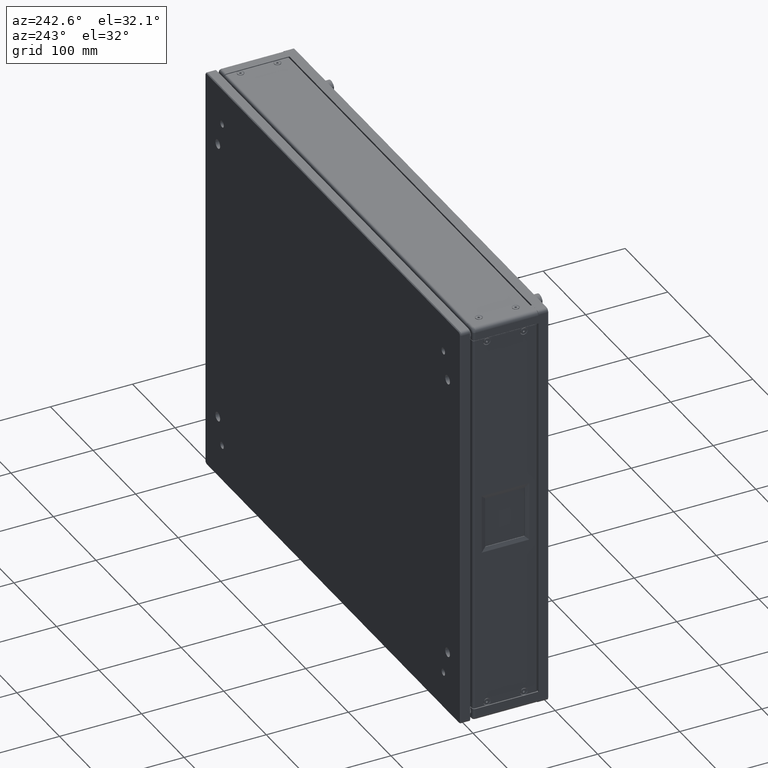
[diagram: clean part render]
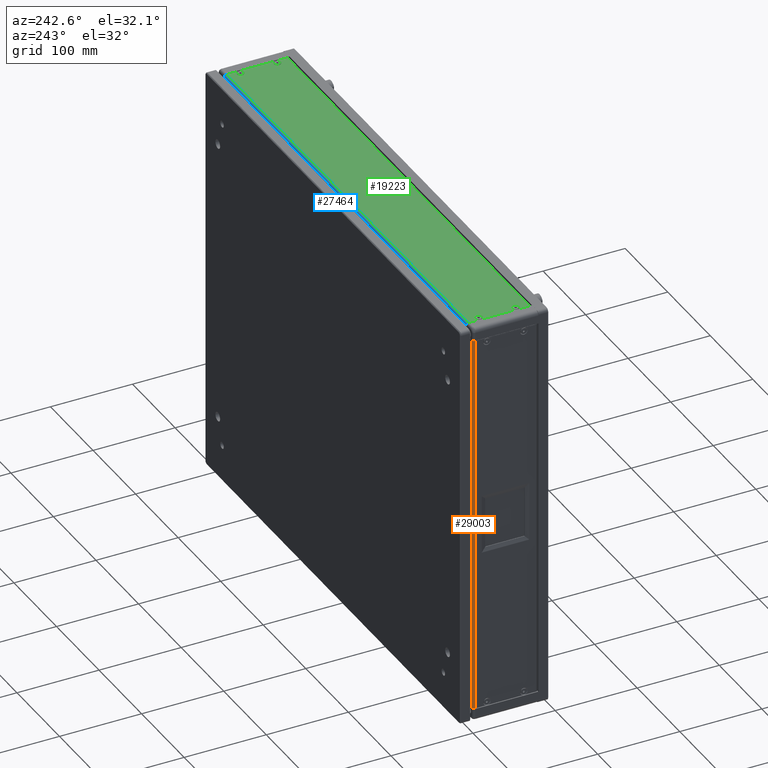
[diagram: same view with three faces highlighted in distinct colors, each labeled with its STEP entity id]
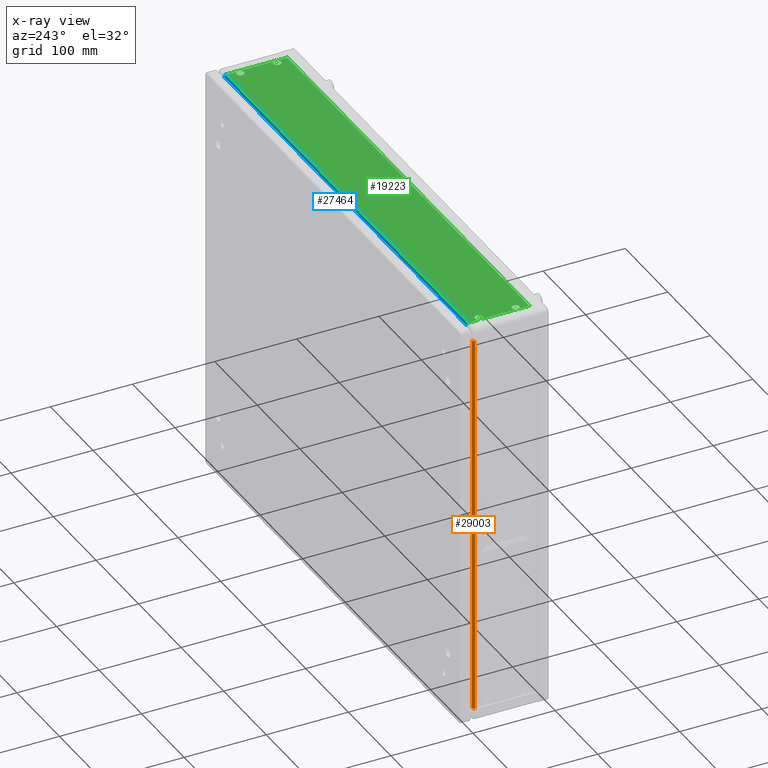
[diagram: x-ray of the same camera — body ghosted, the three highlighted faces saturated]
A machine part, auxiliary view with three faces highlighted in distinct colors.
The next image is the same camera in x-ray (body ghosted, the three faces saturated) — at least one of them is partly hidden behind the body in this view.
Their STEP definitions:

[orange] entity #29003 — the highlighted cylindrical surface (edge-blend (fillet) strip) has radius 2.7366 mm, axis along (0, -0, 1).
#460 = DIRECTION ( 'NONE',  ( 1.000000000000000000, 0.000000000000000000, 0.000000000000000000 ) ) ;
#621 = VERTEX_POINT ( 'NONE', #25596 ) ;
#3621 = CARTESIAN_POINT ( 'NONE',  ( -292.3121244020111931, 97.63718110050371024, 310.5000000000070486 ) ) ;
#4391 = FACE_OUTER_BOUND ( 'NONE', #35696, .T. ) ;
#4512 = CARTESIAN_POINT ( 'NONE',  ( -292.3121244020111931, 94.90058110050370033, 310.5000000000070486 ) ) ;
#5426 = CARTESIAN_POINT ( 'NONE',  ( -295.0487244020112030, 94.90058110050370033, 310.5000000000070486 ) ) ;
#5817 = LINE ( 'NONE', #5426, #6030 ) ;
#6018 = DIRECTION ( 'NONE',  ( -2.289834988289385365E-16, 5.830175127649040374E-29, -1.000000000000000000 ) ) ;
#6030 = VECTOR ( 'NONE', #6018, 1000.000000000000000 ) ;
#6561 = AXIS2_PLACEMENT_3D ( 'NONE', #36499, #17899, #460 ) ;
#6798 = CYLINDRICAL_SURFACE ( 'NONE', #16104, 2.736599999999977939 ) ;
#7314 = ORIENTED_EDGE ( 'NONE', *, *, #30477, .F. ) ;
#9305 = VERTEX_POINT ( 'NONE', #12280 ) ;
#9316 = LINE ( 'NONE', #20597, #10653 ) ;
#9390 = CIRCLE ( 'NONE', #31497, 2.736599999999977939 ) ;
#10475 = VERTEX_POINT ( 'NONE', #35463 ) ;
#10653 = VECTOR ( 'NONE', #39209, 1000.000000000000000 ) ;
#12280 = CARTESIAN_POINT ( 'NONE',  ( -292.3121244020110794, 97.63718110050369603, 779.5000000000069349 ) ) ;
#12934 = DIRECTION ( 'NONE',  ( 2.289834988289385365E-16, -5.830175127649040374E-29, 1.000000000000000000 ) ) ;
#14243 = DIRECTION ( 'NONE',  ( -2.289834988289385365E-16, 5.830175127649040374E-29, -1.000000000000000000 ) ) ;
#16104 = AXIS2_PLACEMENT_3D ( 'NONE', #16497, #12934, #25017 ) ;
#16497 = CARTESIAN_POINT ( 'NONE',  ( -292.3121244020110794, 94.90058110050370033, 779.5000000000069349 ) ) ;
#17013 = ORIENTED_EDGE ( 'NONE', *, *, #28726, .T. ) ;
#17899 = DIRECTION ( 'NONE',  ( -2.289834988289385365E-16, 5.830175127649040374E-29, -1.000000000000000000 ) ) ;
#17967 = CIRCLE ( 'NONE', #6561, 2.736599999999977939 ) ;
#20597 = CARTESIAN_POINT ( 'NONE',  ( -292.3121244020110794, 97.63718110050369603, 779.5000000000069349 ) ) ;
#21183 = ORIENTED_EDGE ( 'NONE', *, *, #34423, .F. ) ;
#25017 = DIRECTION ( 'NONE',  ( 1.000000000000000000, 0.000000000000000000, 0.000000000000000000 ) ) ;
#25596 = CARTESIAN_POINT ( 'NONE',  ( -295.0487244020110893, 94.90058110050370033, 779.5000000000069349 ) ) ;
#28726 = EDGE_CURVE ( 'NONE', #621, #9305, #17967, .T. ) ;
#28882 = DIRECTION ( 'NONE',  ( 1.000000000000000000, 0.000000000000000000, 0.000000000000000000 ) ) ;
#28944 = VERTEX_POINT ( 'NONE', #3621 ) ;
#29003 = ADVANCED_FACE ( 'NONE', ( #4391 ), #6798, .T. ) ;
#30477 = EDGE_CURVE ( 'NONE', #621, #10475, #5817, .T. ) ;
#31497 = AXIS2_PLACEMENT_3D ( 'NONE', #4512, #14243, #28882 ) ;
#34076 = EDGE_CURVE ( 'NONE', #9305, #28944, #9316, .T. ) ;
#34423 = EDGE_CURVE ( 'NONE', #10475, #28944, #9390, .T. ) ;
#35463 = CARTESIAN_POINT ( 'NONE',  ( -295.0487244020112030, 94.90058110050370033, 310.5000000000070486 ) ) ;
#35696 = EDGE_LOOP ( 'NONE', ( #38244, #21183, #7314, #17013 ) ) ;
#36499 = CARTESIAN_POINT ( 'NONE',  ( -292.3121244020110794, 94.90058110050370033, 779.5000000000069349 ) ) ;
#38244 = ORIENTED_EDGE ( 'NONE', *, *, #34076, .T. ) ;
#39209 = DIRECTION ( 'NONE',  ( -2.289834988289385365E-16, 5.830175127649040374E-29, -1.000000000000000000 ) ) ;

[blue] entity #27464 — the highlighted cylindrical surface (edge-blend (fillet) strip) has radius 2.7366 mm, axis along (1, 0, 0).
#650 = DIRECTION ( 'NONE',  ( -1.000000000000000000, -0.000000000000000000, -0.000000000000000000 ) ) ;
#885 = CARTESIAN_POINT ( 'NONE',  ( 288.9512755979890244, 94.90058110056665441, 791.7633999999933394 ) ) ;
#1275 = EDGE_CURVE ( 'NONE', #28196, #4804, #26334, .T. ) ;
#2728 = DIRECTION ( 'NONE',  ( -1.000000000000000000, -0.000000000000000000, -0.000000000000000000 ) ) ;
#3580 = CARTESIAN_POINT ( 'NONE',  ( -280.0487244020110893, 94.90058110056665441, 794.4999999999932925 ) ) ;
#3848 = DIRECTION ( 'NONE',  ( 1.000000000000000000, 0.000000000000000000, 0.000000000000000000 ) ) ;
#4054 = DIRECTION ( 'NONE',  ( -1.000000000000000000, -0.000000000000000000, -0.000000000000000000 ) ) ;
#4385 = CARTESIAN_POINT ( 'NONE',  ( -280.0487244020110893, 97.63718110056665012, 791.7633999999933394 ) ) ;
#4447 = CARTESIAN_POINT ( 'NONE',  ( -280.0487244020110893, 94.90058110056665441, 791.7633999999933394 ) ) ;
#4547 = ORIENTED_EDGE ( 'NONE', *, *, #28994, .T. ) ;
#4804 = VERTEX_POINT ( 'NONE', #3580 ) ;
#7042 = DIRECTION ( 'NONE',  ( 0.000000000000000000, 0.000000000000000000, -1.000000000000000000 ) ) ;
#8303 = VECTOR ( 'NONE', #2728, 1000.000000000000000 ) ;
#9881 = CARTESIAN_POINT ( 'NONE',  ( 288.9512755979890244, 97.63718110056663591, 791.7633999999933394 ) ) ;
#12368 = VECTOR ( 'NONE', #34945, 1000.000000000000000 ) ;
#12935 = AXIS2_PLACEMENT_3D ( 'NONE', #21845, #650, #33916 ) ;
#15207 = ORIENTED_EDGE ( 'NONE', *, *, #15313, .F. ) ;
#15313 = EDGE_CURVE ( 'NONE', #4804, #18430, #29163, .T. ) ;
#15449 = CIRCLE ( 'NONE', #12935, 2.736599999999977939 ) ;
#16538 = FACE_OUTER_BOUND ( 'NONE', #32158, .T. ) ;
#18430 = VERTEX_POINT ( 'NONE', #4385 ) ;
#18576 = ORIENTED_EDGE ( 'NONE', *, *, #1275, .F. ) ;
#20483 = LINE ( 'NONE', #22882, #12368 ) ;
#21845 = CARTESIAN_POINT ( 'NONE',  ( 288.9512755979890244, 94.90058110056665441, 791.7633999999933394 ) ) ;
#22882 = CARTESIAN_POINT ( 'NONE',  ( 288.9512755979890244, 97.63718110056663591, 791.7633999999933394 ) ) ;
#26334 = LINE ( 'NONE', #38783, #8303 ) ;
#27464 = ADVANCED_FACE ( 'NONE', ( #16538 ), #34546, .T. ) ;
#28163 = AXIS2_PLACEMENT_3D ( 'NONE', #885, #3848, #37120 ) ;
#28196 = VERTEX_POINT ( 'NONE', #30694 ) ;
#28626 = ORIENTED_EDGE ( 'NONE', *, *, #32045, .T. ) ;
#28994 = EDGE_CURVE ( 'NONE', #28196, #38754, #15449, .T. ) ;
#29163 = CIRCLE ( 'NONE', #31040, 2.736599999999977939 ) ;
#30694 = CARTESIAN_POINT ( 'NONE',  ( 288.9512755979890244, 94.90058110056665441, 794.4999999999932925 ) ) ;
#31040 = AXIS2_PLACEMENT_3D ( 'NONE', #4447, #4054, #7042 ) ;
#32045 = EDGE_CURVE ( 'NONE', #38754, #18430, #20483, .T. ) ;
#32158 = EDGE_LOOP ( 'NONE', ( #28626, #15207, #18576, #4547 ) ) ;
#33916 = DIRECTION ( 'NONE',  ( 0.000000000000000000, 0.000000000000000000, -1.000000000000000000 ) ) ;
#34546 = CYLINDRICAL_SURFACE ( 'NONE', #28163, 2.736599999999977939 ) ;
#34945 = DIRECTION ( 'NONE',  ( -1.000000000000000000, -0.000000000000000000, -0.000000000000000000 ) ) ;
#37120 = DIRECTION ( 'NONE',  ( 0.000000000000000000, 0.000000000000000000, -1.000000000000000000 ) ) ;
#38754 = VERTEX_POINT ( 'NONE', #9881 ) ;
#38783 = CARTESIAN_POINT ( 'NONE',  ( -280.0487244020110893, 94.90058110056665441, 794.4999999999932925 ) ) ;

[green] entity #19223 — the highlighted planar face has unit normal (-0, 0, 1).
#1183 = DIRECTION ( 'NONE',  ( -0.000000000000000000, 0.000000000000000000, -1.000000000000000000 ) ) ;
#1275 = EDGE_CURVE ( 'NONE', #28196, #4804, #26334, .T. ) ;
#2091 = DIRECTION ( 'NONE',  ( 1.000000000000000000, 0.000000000000000000, 0.000000000000000000 ) ) ;
#2093 = DIRECTION ( 'NONE',  ( -0.000000000000000000, 0.000000000000000000, -1.000000000000000000 ) ) ;
#2194 = EDGE_LOOP ( 'NONE', ( #24706, #8857, #20737, #5027 ) ) ;
#2402 = DIRECTION ( 'NONE',  ( 1.000000000000000000, 0.000000000000000000, 0.000000000000000000 ) ) ;
#2728 = DIRECTION ( 'NONE',  ( -1.000000000000000000, -0.000000000000000000, -0.000000000000000000 ) ) ;
#3183 = CARTESIAN_POINT ( 'NONE',  ( -275.5487244020110893, 80.38718110056669275, 794.5000000000501359 ) ) ;
#3580 = CARTESIAN_POINT ( 'NONE',  ( -280.0487244020110893, 94.90058110056665441, 794.4999999999932925 ) ) ;
#4475 = EDGE_LOOP ( 'NONE', ( #27992 ) ) ;
#4804 = VERTEX_POINT ( 'NONE', #3580 ) ;
#4864 = DIRECTION ( 'NONE',  ( 1.000000000000000000, 0.000000000000000000, 0.000000000000000000 ) ) ;
#5027 = ORIENTED_EDGE ( 'NONE', *, *, #35832, .T. ) ;
#5867 = ORIENTED_EDGE ( 'NONE', *, *, #19745, .T. ) ;
#7189 = LINE ( 'NONE', #26013, #39033 ) ;
#7302 = VECTOR ( 'NONE', #2091, 1000.000000000000000 ) ;
#7477 = FACE_BOUND ( 'NONE', #4475, .T. ) ;
#8112 = CARTESIAN_POINT ( 'NONE',  ( -271.0687244020028857, 35.38718110056670696, 794.5000000000501359 ) ) ;
#8303 = VECTOR ( 'NONE', #2728, 1000.000000000000000 ) ;
#8480 = CARTESIAN_POINT ( 'NONE',  ( -280.0487244020110893, 97.63718110056663591, 794.4999999999932925 ) ) ;
#8562 = AXIS2_PLACEMENT_3D ( 'NONE', #3183, #29532, #2402 ) ;
#8857 = ORIENTED_EDGE ( 'NONE', *, *, #1275, .T. ) ;
#10244 = FACE_BOUND ( 'NONE', #15420, .T. ) ;
#12118 = VECTOR ( 'NONE', #35410, 1000.000000000000000 ) ;
#12348 = CIRCLE ( 'NONE', #8562, 4.480000000008255157 ) ;
#12494 = AXIS2_PLACEMENT_3D ( 'NONE', #38719, #2093, #4864 ) ;
#13626 = FACE_OUTER_BOUND ( 'NONE', #2194, .T. ) ;
#15253 = VERTEX_POINT ( 'NONE', #33457 ) ;
#15420 = EDGE_LOOP ( 'NONE', ( #5867 ) ) ;
#15653 = CARTESIAN_POINT ( 'NONE',  ( 284.4512755979889675, 35.38718110056674959, 794.4999999999932925 ) ) ;
#15864 = EDGE_CURVE ( 'NONE', #30276, #4804, #19779, .T. ) ;
#17151 = LINE ( 'NONE', #26257, #7302 ) ;
#18999 = ORIENTED_EDGE ( 'NONE', *, *, #38285, .T. ) ;
#19223 = ADVANCED_FACE ( 'NONE', ( #13626, #23122, #7477, #19946, #10244 ), #22318, .T. ) ;
#19745 = EDGE_CURVE ( 'NONE', #15253, #15253, #12348, .T. ) ;
#19779 = LINE ( 'NONE', #8480, #12118 ) ;
#19946 = FACE_BOUND ( 'NONE', #33373, .T. ) ;
#20154 = DIRECTION ( 'NONE',  ( -0.000000000000000000, 0.000000000000000000, 1.000000000000000000 ) ) ;
#20449 = EDGE_LOOP ( 'NONE', ( #18999 ) ) ;
#20531 = CARTESIAN_POINT ( 'NONE',  ( 284.4512755979889675, 80.38718110056665012, 794.4999999999932925 ) ) ;
#20737 = ORIENTED_EDGE ( 'NONE', *, *, #15864, .F. ) ;
#21493 = VERTEX_POINT ( 'NONE', #31364 ) ;
#22268 = EDGE_CURVE ( 'NONE', #28196, #23286, #7189, .T. ) ;
#22318 = PLANE ( 'NONE',  #26875 ) ;
#22794 = CIRCLE ( 'NONE', #23414, 4.480000000067319021 ) ;
#23122 = FACE_BOUND ( 'NONE', #20449, .T. ) ;
#23286 = VERTEX_POINT ( 'NONE', #28092 ) ;
#23414 = AXIS2_PLACEMENT_3D ( 'NONE', #15653, #1183, #31063 ) ;
#23900 = EDGE_CURVE ( 'NONE', #35222, #35222, #29547, .T. ) ;
#24491 = CARTESIAN_POINT ( 'NONE',  ( -280.0487244020110893, 20.87378110056664582, 794.4999999999932925 ) ) ;
#24706 = ORIENTED_EDGE ( 'NONE', *, *, #22268, .F. ) ;
#25618 = DIRECTION ( 'NONE',  ( -0.000000000000000000, -1.000000000000000000, -0.000000000000000000 ) ) ;
#25705 = CARTESIAN_POINT ( 'NONE',  ( -280.0487244020110893, 97.63718110056663591, 794.4999999999932925 ) ) ;
#26013 = CARTESIAN_POINT ( 'NONE',  ( 288.9512755979890244, 97.63718110056663591, 794.4999999999932925 ) ) ;
#26257 = CARTESIAN_POINT ( 'NONE',  ( -280.0487244020110893, 20.87378110056664582, 794.4999999999932925 ) ) ;
#26334 = LINE ( 'NONE', #38783, #8303 ) ;
#26484 = DIRECTION ( 'NONE',  ( -0.000000000000000000, 0.000000000000000000, -1.000000000000000000 ) ) ;
#26875 = AXIS2_PLACEMENT_3D ( 'NONE', #25705, #20154, #35188 ) ;
#27992 = ORIENTED_EDGE ( 'NONE', *, *, #30183, .T. ) ;
#28092 = CARTESIAN_POINT ( 'NONE',  ( 288.9512755979890244, 20.87378110056664582, 794.4999999999932925 ) ) ;
#28196 = VERTEX_POINT ( 'NONE', #30694 ) ;
#28520 = CIRCLE ( 'NONE', #31685, 4.480000000067319021 ) ;
#29532 = DIRECTION ( 'NONE',  ( -0.000000000000000000, 0.000000000000000000, -1.000000000000000000 ) ) ;
#29547 = CIRCLE ( 'NONE', #12494, 4.480000000008255157 ) ;
#29677 = VERTEX_POINT ( 'NONE', #29870 ) ;
#29870 = CARTESIAN_POINT ( 'NONE',  ( 288.9312755980562315, 35.38718110056674959, 794.4999999999932925 ) ) ;
#30183 = EDGE_CURVE ( 'NONE', #21493, #21493, #28520, .T. ) ;
#30276 = VERTEX_POINT ( 'NONE', #24491 ) ;
#30694 = CARTESIAN_POINT ( 'NONE',  ( 288.9512755979890244, 94.90058110056665441, 794.4999999999932925 ) ) ;
#30967 = ORIENTED_EDGE ( 'NONE', *, *, #23900, .T. ) ;
#31063 = DIRECTION ( 'NONE',  ( 1.000000000000000000, 0.000000000000000000, 0.000000000000000000 ) ) ;
#31364 = CARTESIAN_POINT ( 'NONE',  ( 288.9312755980562315, 80.38718110056665012, 794.4999999999932925 ) ) ;
#31685 = AXIS2_PLACEMENT_3D ( 'NONE', #20531, #26484, #36160 ) ;
#33373 = EDGE_LOOP ( 'NONE', ( #30967 ) ) ;
#33457 = CARTESIAN_POINT ( 'NONE',  ( -271.0687244020028857, 80.38718110056669275, 794.5000000000501359 ) ) ;
#35188 = DIRECTION ( 'NONE',  ( 1.000000000000000000, 0.000000000000000000, 0.000000000000000000 ) ) ;
#35222 = VERTEX_POINT ( 'NONE', #8112 ) ;
#35410 = DIRECTION ( 'NONE',  ( -1.224646799147353454E-16, 1.000000000000000000, -0.000000000000000000 ) ) ;
#35832 = EDGE_CURVE ( 'NONE', #30276, #23286, #17151, .T. ) ;
#36160 = DIRECTION ( 'NONE',  ( 1.000000000000000000, 0.000000000000000000, 0.000000000000000000 ) ) ;
#38285 = EDGE_CURVE ( 'NONE', #29677, #29677, #22794, .T. ) ;
#38719 = CARTESIAN_POINT ( 'NONE',  ( -275.5487244020110893, 35.38718110056670696, 794.5000000000501359 ) ) ;
#38783 = CARTESIAN_POINT ( 'NONE',  ( -280.0487244020110893, 94.90058110056665441, 794.4999999999932925 ) ) ;
#39033 = VECTOR ( 'NONE', #25618, 1000.000000000000000 ) ;